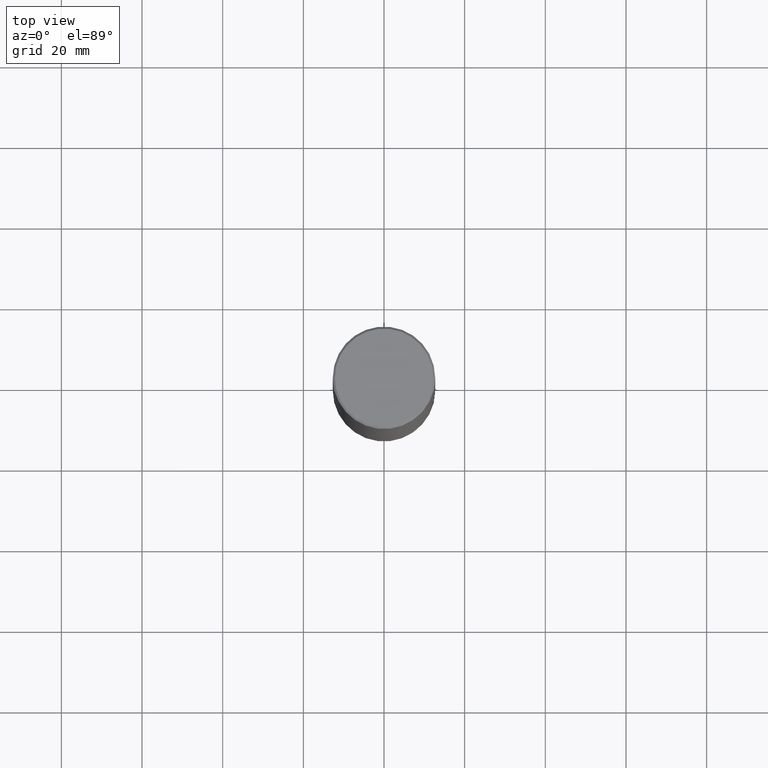
[diagram: clean part render]
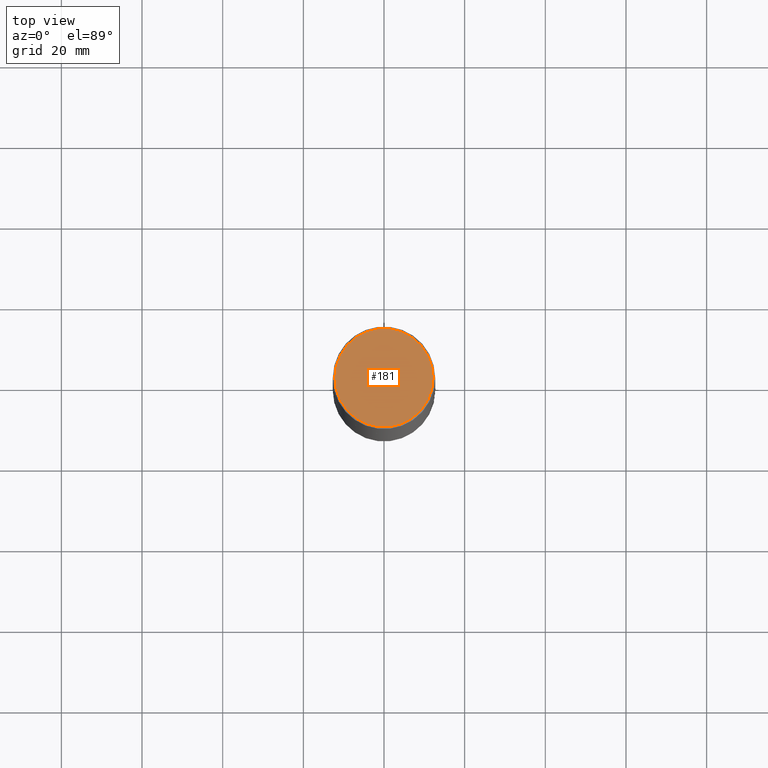
[diagram: same view with one face highlighted and labeled with its STEP entity id]
A machine part, top view. The second image highlights one B-rep face of the part: STEP entity #181.
In plain terms, the highlighted planar face has unit normal (0, -0, -1).
Its self-contained STEP definition (entity closure, byte-faithful):
#2 = CARTESIAN_POINT ( 'NONE',  ( -5.219257071676098903E-46, 7.451715851902235727E-32, 2.134256245050205639E-17 ) ) ;
#7 = CIRCLE ( 'NONE', #82, 0.4799999999999996492 ) ;
#33 = CARTESIAN_POINT ( 'NONE',  ( -0.4799999999999996492, 3.386736898677836830E-15, 2.134256245047849534E-17 ) ) ;
#48 = DIRECTION ( 'NONE',  ( -2.445468806185136597E-29, 3.491481338843145583E-15, 1.000000000000000000 ) ) ;
#50 = CARTESIAN_POINT ( 'NONE',  ( -5.219257071676098903E-46, 7.451715851902235727E-32, 2.134256245050205639E-17 ) ) ;
#58 = CIRCLE ( 'NONE', #297, 0.4799999999999996492 ) ;
#68 = EDGE_CURVE ( 'NONE', #174, #74, #58, .T. ) ;
#74 = VERTEX_POINT ( 'NONE', #361 ) ;
#82 = AXIS2_PLACEMENT_3D ( 'NONE', #50, #48, #200 ) ;
#94 = DIRECTION ( 'NONE',  ( -2.445468806185136597E-29, 3.491481338843145583E-15, 1.000000000000000000 ) ) ;
#99 = DIRECTION ( 'NONE',  ( -1.000000000000000000, 6.982962677686265922E-15, -4.876176775795935793E-29 ) ) ;
#115 = EDGE_CURVE ( 'NONE', #74, #174, #7, .T. ) ;
#131 = ORIENTED_EDGE ( 'NONE', *, *, #68, .T. ) ;
#174 = VERTEX_POINT ( 'NONE', #33 ) ;
#181 = ADVANCED_FACE ( 'NONE', ( #256 ), #230, .F. ) ;
#200 = DIRECTION ( 'NONE',  ( 1.000000000000000000, -6.982962677686267499E-15, 4.876431871984417079E-29 ) ) ;
#230 = PLANE ( 'NONE',  #282 ) ;
#232 = DIRECTION ( 'NONE',  ( 1.000000000000000000, -6.982962677686267499E-15, 4.876431871984417079E-29 ) ) ;
#242 = EDGE_LOOP ( 'NONE', ( #131, #295 ) ) ;
#256 = FACE_OUTER_BOUND ( 'NONE', #242, .T. ) ;
#282 = AXIS2_PLACEMENT_3D ( 'NONE', #338, #352, #99 ) ;
#295 = ORIENTED_EDGE ( 'NONE', *, *, #115, .T. ) ;
#297 = AXIS2_PLACEMENT_3D ( 'NONE', #2, #94, #232 ) ;
#338 = CARTESIAN_POINT ( 'NONE',  ( 3.351822085289405181E-15, 0.4799999999999996492, -1.665239761419457638E-15 ) ) ;
#352 = DIRECTION ( 'NONE',  ( 2.438088387897960049E-29, -3.491481338843145188E-15, -1.000000000000000000 ) ) ;
#361 = CARTESIAN_POINT ( 'NONE',  ( 0.4799999999999996492, -3.396558832296480127E-15, 2.134256245052565135E-17 ) ) ;